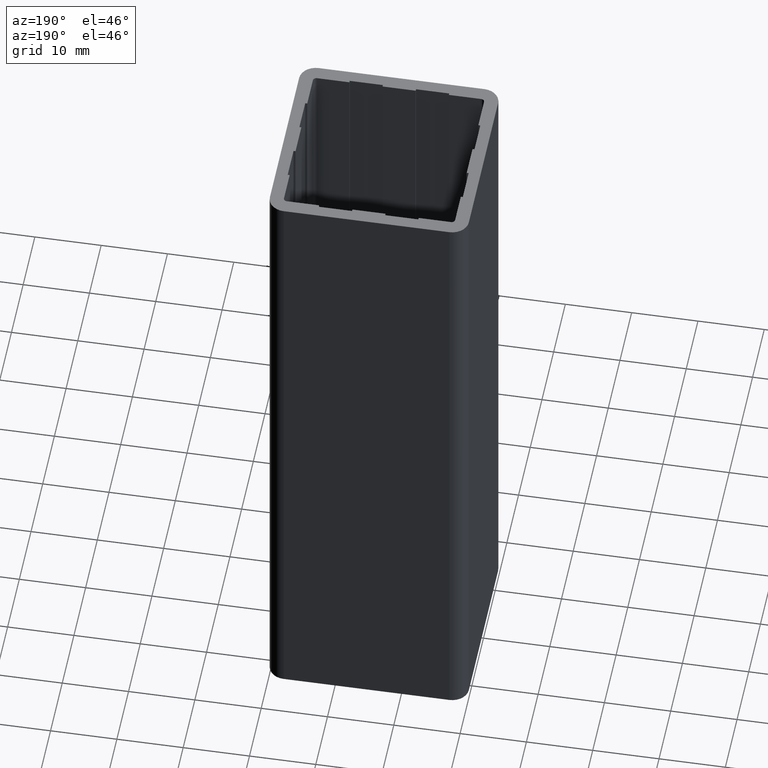
[diagram: clean part render]
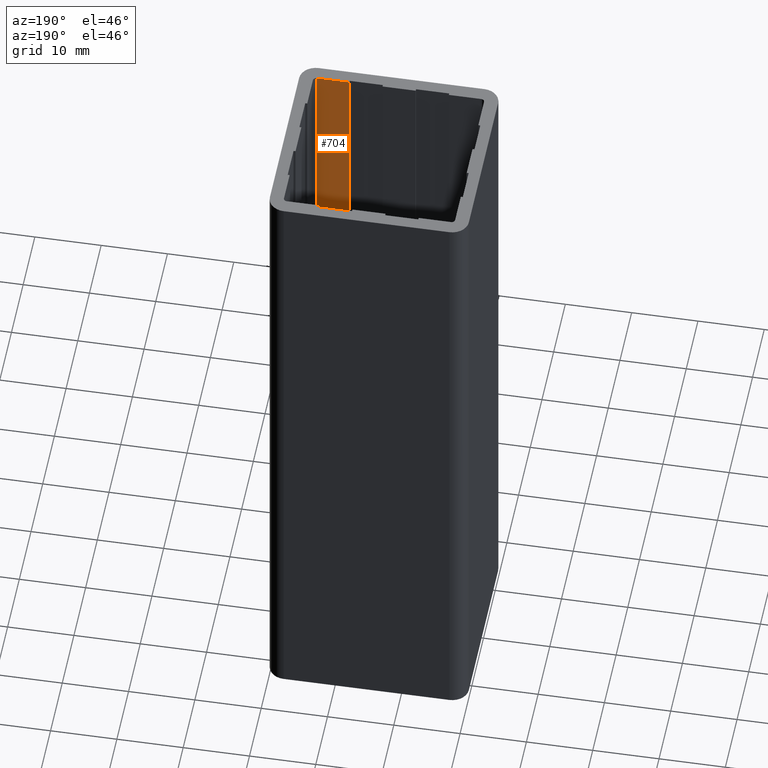
[diagram: same view with one face highlighted and labeled with its STEP entity id]
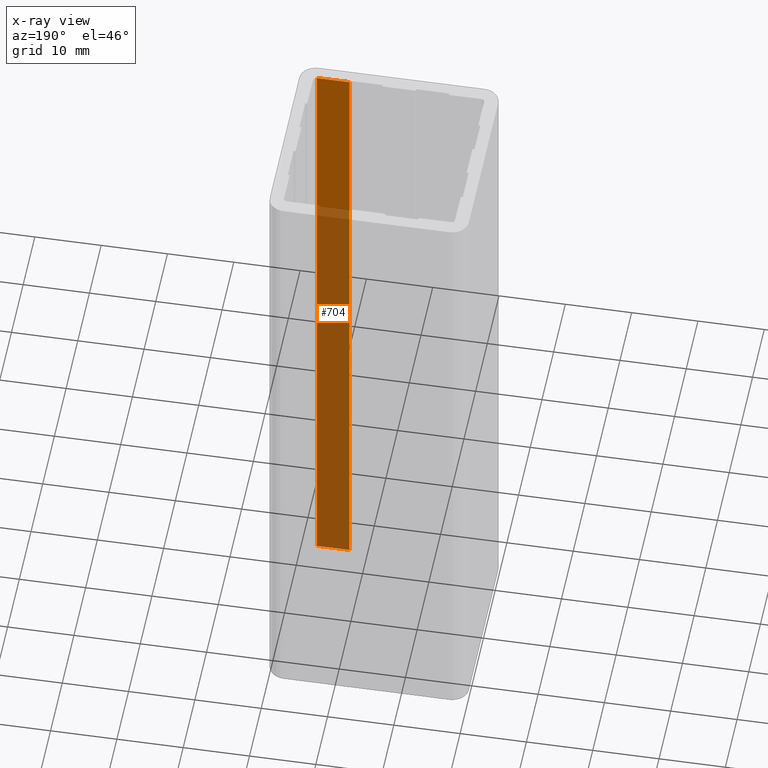
[diagram: x-ray of the same camera — body ghosted, the highlighted face saturated]
A machine part, auxiliary view. The second image highlights one B-rep face of the part: STEP entity #704.
The next image is the same camera in x-ray: the body ghosted, the highlighted face saturated — about 73% of this face is hidden behind the body in this view.
In plain terms, the highlighted planar face has unit normal (0, 1, 0).
Its self-contained STEP definition (entity closure, byte-faithful):
#646=CARTESIAN_POINT('',(-2.599999999737406,-12.899999998697581,0.0));
#647=VERTEX_POINT('',#646);
#655=CARTESIAN_POINT('',(-2.599999999737406,-12.899999998697581,100.0));
#656=VERTEX_POINT('',#655);
#657=CARTESIAN_POINT('',(-2.599999999737406,-12.899999998697581,0.0));
#658=DIRECTION('',(0.0,0.0,1.0));
#659=VECTOR('',#658,100.0);
#660=LINE('',#657,#659);
#661=EDGE_CURVE('',#647,#656,#660,.T.);
#674=CARTESIAN_POINT('',(-2.599999999737406,-12.899999998697581,0.0));
#675=DIRECTION('',(0.0,1.0,0.0));
#676=DIRECTION('',(-1.0,0.0,0.0));
#677=AXIS2_PLACEMENT_3D('',#674,#675,#676);
#678=PLANE('',#677);
#679=CARTESIAN_POINT('',(-7.499999999242732,-12.899999998697581,0.0));
#680=VERTEX_POINT('',#679);
#681=CARTESIAN_POINT('',(-2.599999999737406,-12.899999998697581,0.0));
#682=DIRECTION('',(-1.0,0.0,0.0));
#683=VECTOR('',#682,4.899999999505326);
#684=LINE('',#681,#683);
#685=EDGE_CURVE('',#647,#680,#684,.T.);
#686=ORIENTED_EDGE('',*,*,#685,.T.);
#687=CARTESIAN_POINT('',(-7.499999999242732,-12.899999998697581,100.0));
#688=VERTEX_POINT('',#687);
#689=CARTESIAN_POINT('',(-7.499999999242732,-12.899999998697581,0.0));
#690=DIRECTION('',(0.0,0.0,1.0));
#691=VECTOR('',#690,100.0);
#692=LINE('',#689,#691);
#693=EDGE_CURVE('',#680,#688,#692,.T.);
#694=ORIENTED_EDGE('',*,*,#693,.T.);
#695=CARTESIAN_POINT('',(-2.599999999737406,-12.899999998697581,100.0));
#696=DIRECTION('',(-1.0,0.0,0.0));
#697=VECTOR('',#696,4.899999999505326);
#698=LINE('',#695,#697);
#699=EDGE_CURVE('',#656,#688,#698,.T.);
#700=ORIENTED_EDGE('',*,*,#699,.F.);
#701=ORIENTED_EDGE('',*,*,#661,.F.);
#702=EDGE_LOOP('',(#686,#694,#700,#701));
#703=FACE_OUTER_BOUND('',#702,.T.);
#704=ADVANCED_FACE('',(#703),#678,.T.);